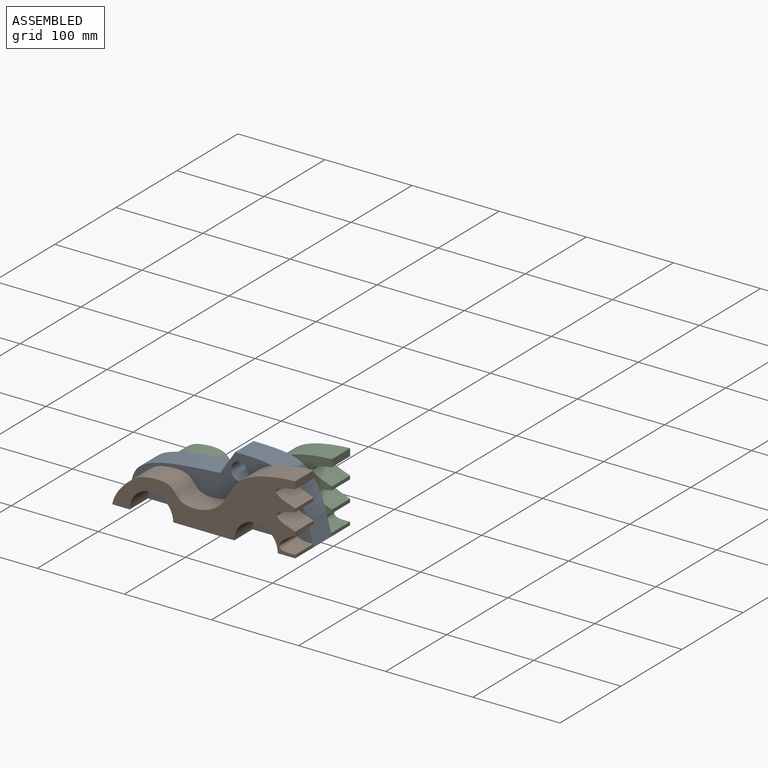
[diagram: assembled view]
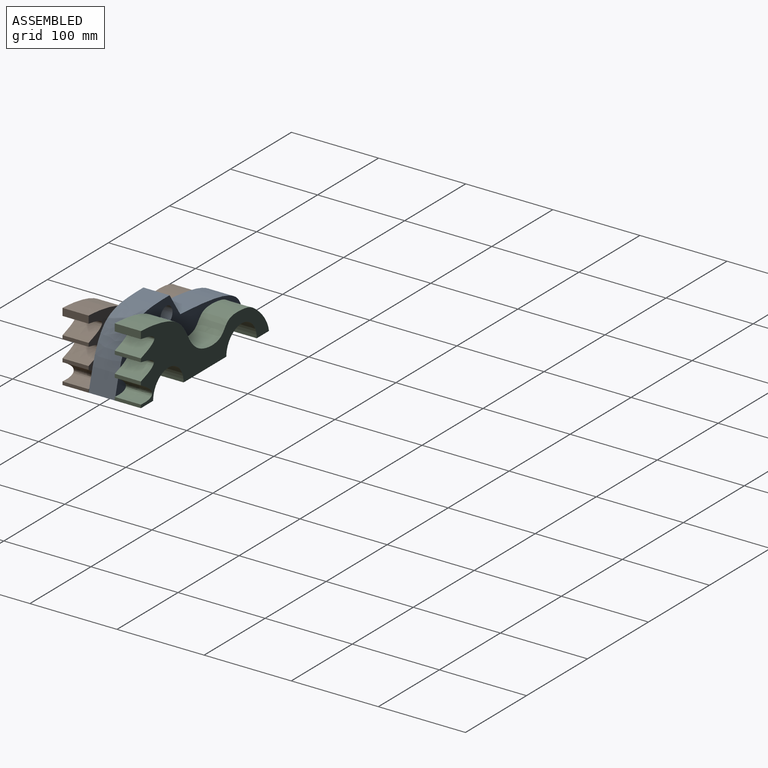
[diagram: assembled view, second angle]
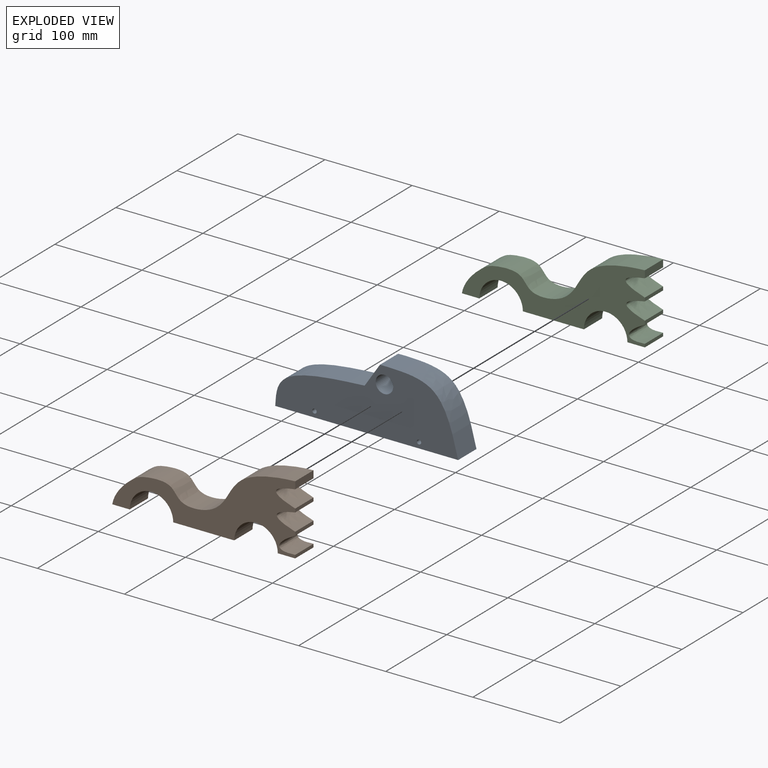
[diagram: exploded view]
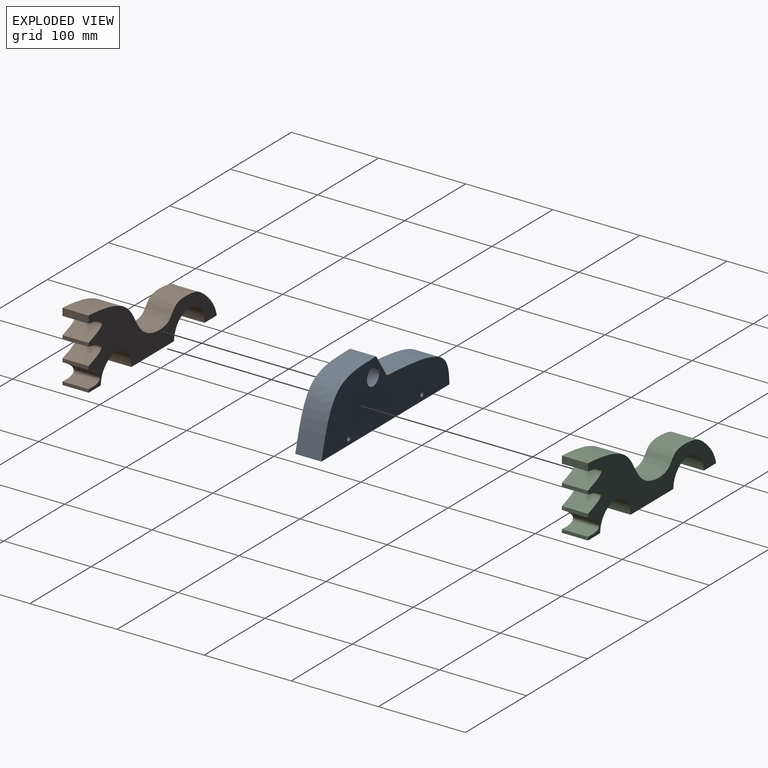
[diagram: exploded view, second angle]
ASSEMBLY  parts=3 mates=2
PART A: 10 faces, bbox 210x30x74.9 mm
  f0: extruded ~102.64x48.49mm, area 3855.2mm2, adj f1,f4,f5,f6
  f1: plane 210x30mm, normal (0,0,-1), area 6300mm2, adj f0,f2,f5,f6
  f2: extruded ~80.57x74.91mm, area 3760.5mm2, adj f1,f3,f5,f6
  f3: plane 30x9.25mm, normal (0,0,1), area 277.4mm2, adj f2,f4,f5,f6
  f4: plane 30x26.42mm, normal (-0.83,0,0.55), area 951.4mm2, adj f0,f3,f5,f6
  f5: plane 210x74.91mm, normal (0,-1,0), area 10564.6mm2, adj f0,f1,f2,f3,f4,f7,f8,f9
  f6: plane 210x74.91mm, normal (0,1,0), area 10564.6mm2, adj f0,f1,f2,f3,f4,f7,f8,f9
  f7: cylinder r=2.5mm len=30mm, axis (0,-1,0), area 471.2mm2, adj f5,f6
  f8: cylinder r=2.5mm len=30mm, axis (0,-1,0), area 471.2mm2, adj f5,f6
  f9: cylinder r=10mm len=30mm, axis (0,-1,0), area 1885mm2, adj f5,f6
PART B: 15 faces, bbox 210x30x80 mm
  f0: plane 70x30mm, normal (0,0,-1), area 2100mm2, adj f5,f6,f12,f13
  f1: plane 30x20mm, normal (0,0,-1), area 600mm2, adj f5,f6,f7,f12
  f2: plane 30x8.32mm, normal (1,0,0), area 249.4mm2, adj f5,f6,f7,f14
  f3: plane 30x4mm, normal (1,0,0), area 120mm2, adj f5,f6,f11,f14
  f4: plane 30x4mm, normal (1,0,0), area 120mm2, adj f5,f6,f10,f11
  f5: plane 210x80mm, normal (0,-1,0), area 6605.9mm2, adj f0,f1,f2,f3,f4,f7,f8,f9
  f6: plane 210x80mm, normal (0,1,0), area 6605.9mm2, adj f0,f1,f2,f3,f4,f7,f8,f9
  f7: extruded ~210x80mm, area 7695.2mm2, adj f1,f2,f5,f6
  f8: plane 30x20mm, normal (0,0,-1), area 600mm2, adj f5,f6,f9,f13
  f9: plane 30x3.69mm, normal (1,0,0), area 110.6mm2, adj f5,f6,f8,f10
  f10: extruded ~30x20.26mm, area 1352.8mm2, adj f4,f5,f6,f9
  f11: extruded ~30x21.17mm, area 1460.3mm2, adj f3,f4,f5,f6
  f12: cylinder r=25mm len=50mm, axis (0,-1,0), area 2356.2mm2, adj f0,f1,f5,f6
  f13: cylinder r=25mm len=50mm, axis (0,-1,0), area 2356.2mm2, adj f0,f5,f6,f8
  f14: extruded ~30x22.03mm, area 1508.9mm2, adj f2,f3,f5,f6
PART C: same geometry as B
PLACE A t=(-19.54,10.72,0.72)mm
PLACE B t=(-10.6,-19.28,13.21)mm
PLACE C t=(-10.6,40.72,13.21)mm
MATE fastened B.f6 <-> A.f5  axis (0,1,0) through (90.54,-19.28,-31.34)mm
MATE fastened C.f5 <-> A.f6  axis (0,-1,0) through (90.54,10.72,-31.34)mm
